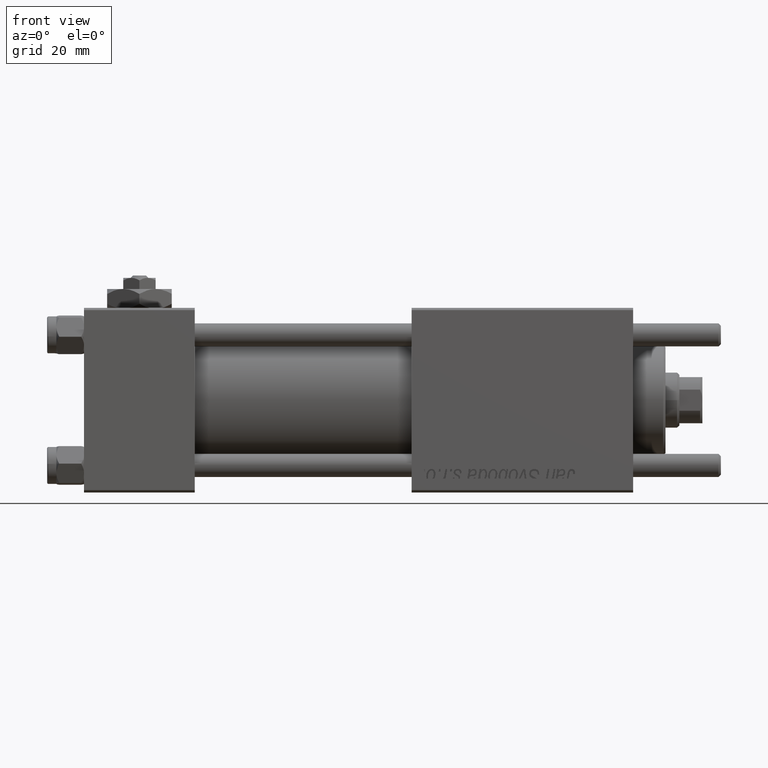
[diagram: clean part render]
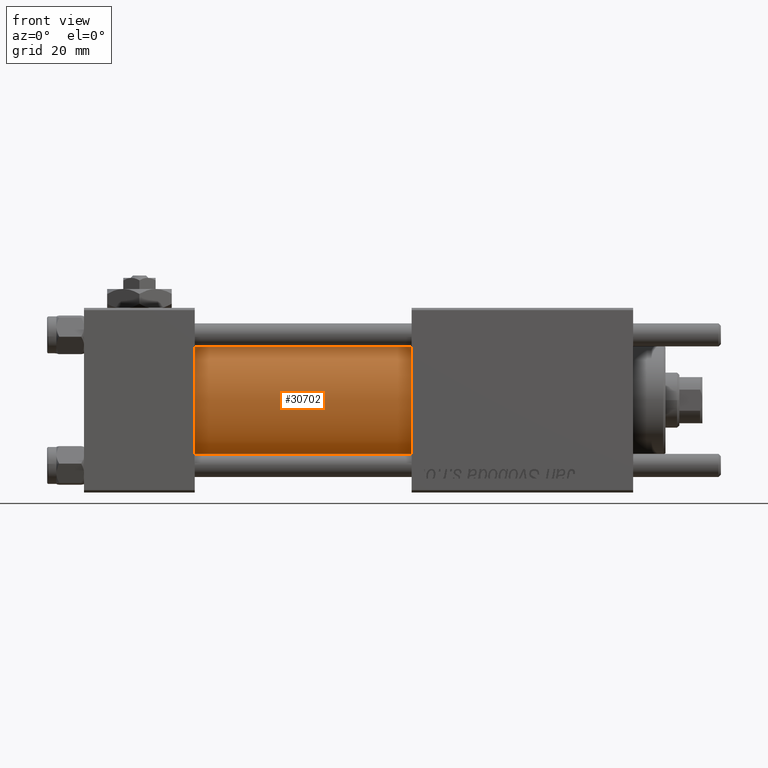
[diagram: same view with one face highlighted and labeled with its STEP entity id]
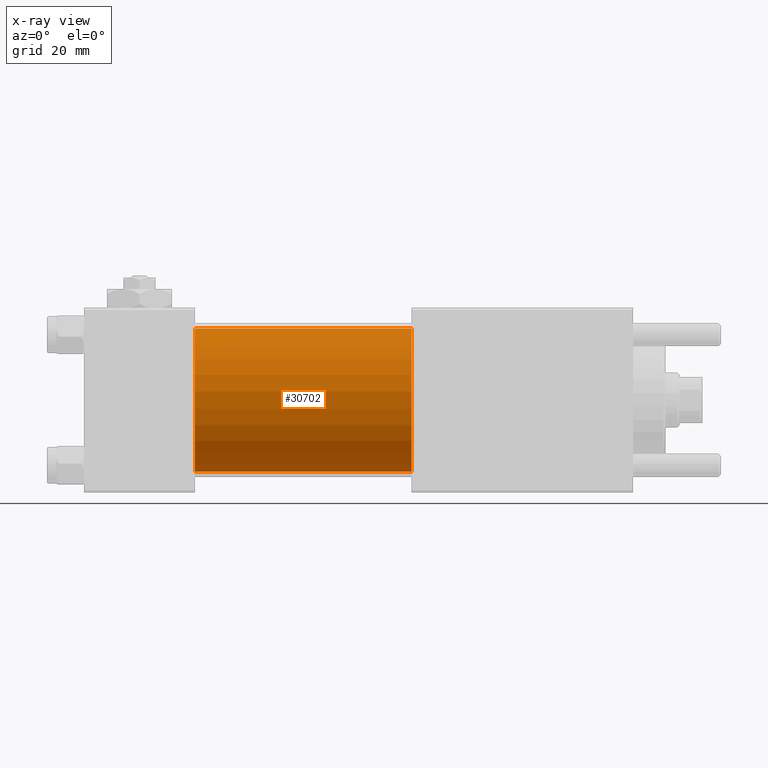
[diagram: x-ray of the same camera — body ghosted, the highlighted face saturated]
A machine part, front view. The second image highlights one B-rep face of the part: STEP entity #30702.
The next image is the same camera in x-ray: the body ghosted, the highlighted face saturated — about 0% of this face is hidden behind the body in this view.
In plain terms, the highlighted cylindrical surface (partial cylindrical patch) has radius 15.5 mm, axis along (-1, -0, -0).
Its self-contained STEP definition (entity closure, byte-faithful):
#336 = CIRCLE ( 'NONE', #31606, 15.50000000000000000 ) ;
#1331 = ORIENTED_EDGE ( 'NONE', *, *, #20711, .T. ) ;
#2778 = VERTEX_POINT ( 'NONE', #39714 ) ;
#5414 = VERTEX_POINT ( 'NONE', #53359 ) ;
#7908 = CARTESIAN_POINT ( 'NONE',  ( 24.00000000000000000, -2.602085213965210642E-15, 0.000000000000000000 ) ) ;
#8204 = DIRECTION ( 'NONE',  ( 0.000000000000000000, 0.000000000000000000, 1.000000000000000000 ) ) ;
#8245 = EDGE_LOOP ( 'NONE', ( #56149, #58046, #35817, #1331 ) ) ;
#10369 = EDGE_CURVE ( 'NONE', #2778, #5414, #38480, .T. ) ;
#10850 = DIRECTION ( 'NONE',  ( -1.000000000000000000, -0.000000000000000000, -0.000000000000000000 ) ) ;
#11613 = CARTESIAN_POINT ( 'NONE',  ( 24.00000000000000000, -2.602085213965210642E-15, 15.50000000000000000 ) ) ;
#15068 = DIRECTION ( 'NONE',  ( -1.000000000000000000, -0.000000000000000000, -0.000000000000000000 ) ) ;
#16728 = CARTESIAN_POINT ( 'NONE',  ( 71.00000000000001421, -2.602085213965210642E-15, 0.000000000000000000 ) ) ;
#16993 = AXIS2_PLACEMENT_3D ( 'NONE', #16728, #15068, #29797 ) ;
#20373 = DIRECTION ( 'NONE',  ( -1.000000000000000000, -0.000000000000000000, -0.000000000000000000 ) ) ;
#20711 = EDGE_CURVE ( 'NONE', #38320, #5414, #336, .T. ) ;
#21600 = EDGE_CURVE ( 'NONE', #31438, #38320, #47882, .T. ) ;
#24746 = CARTESIAN_POINT ( 'NONE',  ( 71.00000000000001421, -2.602085213965210642E-15, 15.50000000000000000 ) ) ;
#26892 = VECTOR ( 'NONE', #10850, 1000.000000000000000 ) ;
#27109 = AXIS2_PLACEMENT_3D ( 'NONE', #43034, #38882, #46892 ) ;
#29797 = DIRECTION ( 'NONE',  ( 0.000000000000000000, 0.000000000000000000, 1.000000000000000000 ) ) ;
#30702 = ADVANCED_FACE ( 'NONE', ( #51239 ), #52330, .T. ) ;
#31314 = DIRECTION ( 'NONE',  ( 1.000000000000000000, 0.000000000000000000, 0.000000000000000000 ) ) ;
#31438 = VERTEX_POINT ( 'NONE', #36442 ) ;
#31606 = AXIS2_PLACEMENT_3D ( 'NONE', #7908, #31314, #8204 ) ;
#35817 = ORIENTED_EDGE ( 'NONE', *, *, #21600, .T. ) ;
#36442 = CARTESIAN_POINT ( 'NONE',  ( 71.00000000000001421, -2.602085213965210642E-15, 15.50000000000000000 ) ) ;
#37358 = EDGE_CURVE ( 'NONE', #31438, #2778, #52680, .T. ) ;
#38320 = VERTEX_POINT ( 'NONE', #11613 ) ;
#38480 = LINE ( 'NONE', #41767, #53156 ) ;
#38882 = DIRECTION ( 'NONE',  ( 1.000000000000000000, 0.000000000000000000, 0.000000000000000000 ) ) ;
#39714 = CARTESIAN_POINT ( 'NONE',  ( 71.00000000000001421, -7.038826752868131828E-16, -15.50000000000000000 ) ) ;
#41767 = CARTESIAN_POINT ( 'NONE',  ( 71.00000000000001421, -7.038826752868131828E-16, -15.50000000000000000 ) ) ;
#43034 = CARTESIAN_POINT ( 'NONE',  ( 71.00000000000001421, -2.602085213965210642E-15, 0.000000000000000000 ) ) ;
#46892 = DIRECTION ( 'NONE',  ( 0.000000000000000000, 0.000000000000000000, -1.000000000000000000 ) ) ;
#47882 = LINE ( 'NONE', #24746, #26892 ) ;
#51239 = FACE_OUTER_BOUND ( 'NONE', #8245, .T. ) ;
#52330 = CYLINDRICAL_SURFACE ( 'NONE', #16993, 15.50000000000000000 ) ;
#52680 = CIRCLE ( 'NONE', #27109, 15.50000000000000000 ) ;
#53156 = VECTOR ( 'NONE', #20373, 1000.000000000000000 ) ;
#53359 = CARTESIAN_POINT ( 'NONE',  ( 24.00000000000000000, -7.038826752868131828E-16, -15.50000000000000000 ) ) ;
#56149 = ORIENTED_EDGE ( 'NONE', *, *, #10369, .F. ) ;
#58046 = ORIENTED_EDGE ( 'NONE', *, *, #37358, .F. ) ;